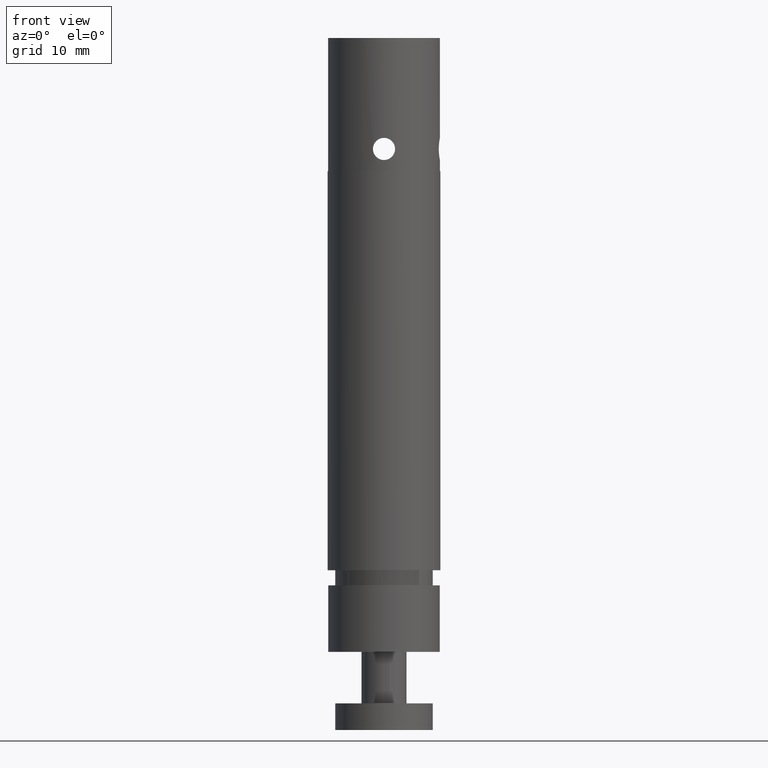
[diagram: clean part render]
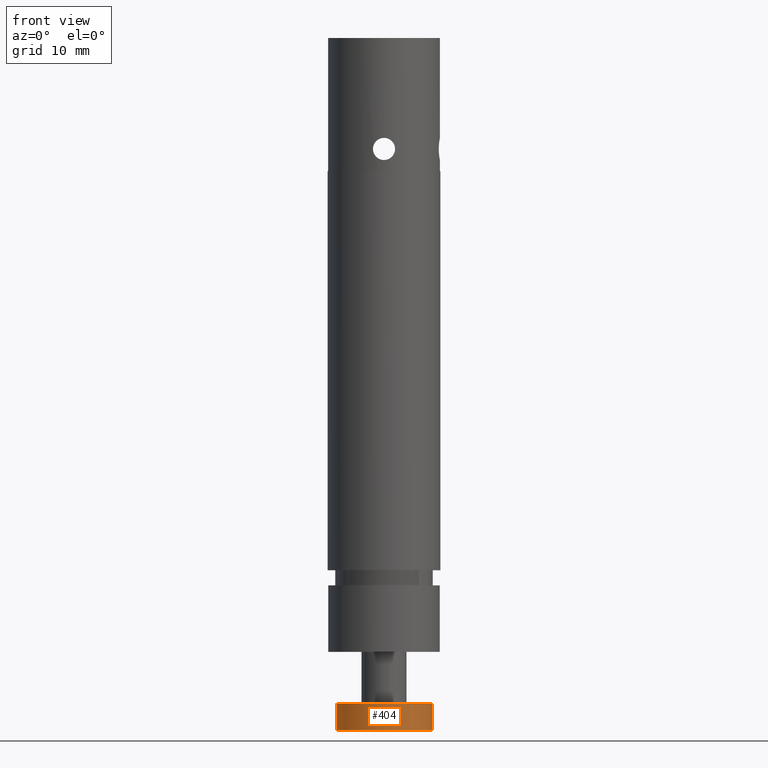
[diagram: same view with one face highlighted and labeled with its STEP entity id]
A machine part, front view. The second image highlights one B-rep face of the part: STEP entity #404.
In plain terms, the highlighted cylindrical surface (partial cylindrical patch) has radius 5.5 mm, axis along (0, 0, -1).
Its self-contained STEP definition (entity closure, byte-faithful):
#362 = VERTEX_POINT ( 'NONE', #1895 ) ;
#404 = ADVANCED_FACE ( 'NONE', ( #2031 ), #2078, .T. ) ;
#405 = EDGE_LOOP ( 'NONE', ( #406, #407, #408, #458 ) ) ;
#406 = ORIENTED_EDGE ( 'NONE', *, *, #412, .F. ) ;
#407 = ORIENTED_EDGE ( 'NONE', *, *, #422, .F. ) ;
#408 = ORIENTED_EDGE ( 'NONE', *, *, #418, .T. ) ;
#410 = VERTEX_POINT ( 'NONE', #2068 ) ;
#412 = EDGE_CURVE ( 'NONE', #362, #413, #2067, .T. ) ;
#413 = VERTEX_POINT ( 'NONE', #2063 ) ;
#416 = VERTEX_POINT ( 'NONE', #2057 ) ;
#418 = EDGE_CURVE ( 'NONE', #410, #416, #2055, .T. ) ;
#422 = EDGE_CURVE ( 'NONE', #410, #362, #2086, .T. ) ;
#458 = ORIENTED_EDGE ( 'NONE', *, *, #459, .T. ) ;
#459 = EDGE_CURVE ( 'NONE', #416, #413, #2100, .T. ) ;
#1895 = CARTESIAN_POINT ( 'NONE',  ( 0.2390839190030724100, -0.2007643852930111900, -3.222814476048128500 ) ) ;
#2031 = FACE_OUTER_BOUND ( 'NONE', #405, .T. ) ;
#2052 = DIRECTION ( 'NONE',  ( 0.0000000000000000000, 0.0000000000000000000, -1.000000000000000000 ) ) ;
#2053 = VECTOR ( 'NONE', #2052, 39.37007874015748100 ) ;
#2054 = CARTESIAN_POINT ( 'NONE',  ( -0.1787140088864772000, -0.3147611683702057900, -3.222814476048128500 ) ) ;
#2055 = LINE ( 'NONE', #2054, #2053 ) ;
#2057 = CARTESIAN_POINT ( 'NONE',  ( -0.1787140088864770900, -0.3147611683702057900, -3.340924712268601200 ) ) ;
#2063 = CARTESIAN_POINT ( 'NONE',  ( 0.2390839190030724100, -0.2007643852930111900, -3.340924712268601200 ) ) ;
#2064 = DIRECTION ( 'NONE',  ( 0.0000000000000000000, 0.0000000000000000000, -1.000000000000000000 ) ) ;
#2065 = VECTOR ( 'NONE', #2064, 39.37007874015748100 ) ;
#2066 = CARTESIAN_POINT ( 'NONE',  ( 0.2390839190030724900, -0.2007643852930111600, -3.222814476048128500 ) ) ;
#2067 = LINE ( 'NONE', #2066, #2065 ) ;
#2068 = CARTESIAN_POINT ( 'NONE',  ( -0.1787140088864770900, -0.3147611683702057900, -3.222814476048128500 ) ) ;
#2073 = DIRECTION ( 'NONE',  ( -0.9647333971267780800, -0.2632289354691584900, 0.0000000000000000000 ) ) ;
#2074 = DIRECTION ( 'NONE',  ( 0.0000000000000000000, 0.0000000000000000000, -1.000000000000000000 ) ) ;
#2075 = CARTESIAN_POINT ( 'NONE',  ( 0.03018495505829765400, -0.2577627768316084800, -3.222814476048128500 ) ) ;
#2076 = AXIS2_PLACEMENT_3D ( 'NONE', #2075, #2074, #2073 ) ;
#2078 = CYLINDRICAL_SURFACE ( 'NONE', #2076, 0.2165354330708662300 ) ;
#2082 = DIRECTION ( 'NONE',  ( 0.9647333971267780800, 0.2632289354691583200, 0.0000000000000000000 ) ) ;
#2083 = DIRECTION ( 'NONE',  ( 0.0000000000000000000, 0.0000000000000000000, 1.000000000000000000 ) ) ;
#2084 = CARTESIAN_POINT ( 'NONE',  ( 0.03018495505829765400, -0.2577627768316084800, -3.222814476048128500 ) ) ;
#2085 = AXIS2_PLACEMENT_3D ( 'NONE', #2084, #2083, #2082 ) ;
#2086 = CIRCLE ( 'NONE', #2085, 0.2165354330708662300 ) ;
#2100 = CIRCLE ( 'NONE', #2144, 0.2165354330708662300 ) ;
#2105 = CARTESIAN_POINT ( 'NONE',  ( 0.03018495505829765400, -0.2577627768316084800, -3.340924712268601200 ) ) ;
#2142 = DIRECTION ( 'NONE',  ( 0.9647333971267780800, 0.2632289354691583200, 0.0000000000000000000 ) ) ;
#2143 = DIRECTION ( 'NONE',  ( 0.0000000000000000000, 0.0000000000000000000, 1.000000000000000000 ) ) ;
#2144 = AXIS2_PLACEMENT_3D ( 'NONE', #2105, #2143, #2142 ) ;